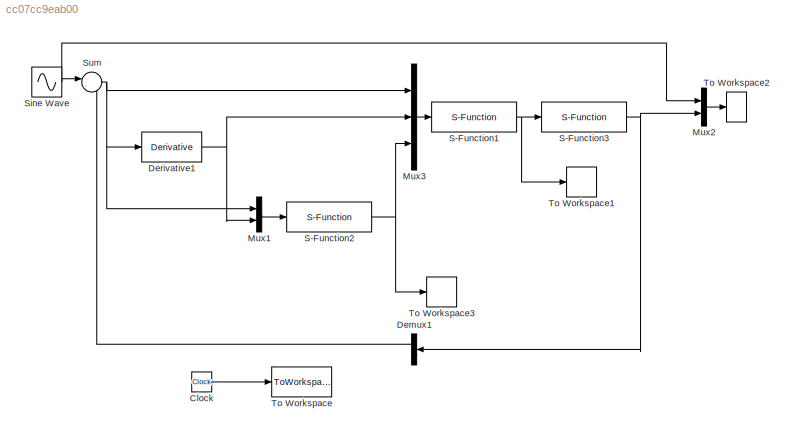
MODEL slx_cc07cc9eab00
KIND model
CONFIG AbsTol = auto
CONFIG FixedStep = 0.01
CONFIG MaxStep = auto
CONFIG MinStep = auto
CONFIG RelTol = 1e-3
CONFIG SampleTimeConstraint = Unconstrained
CONFIG Solver = ode45
CONFIG SolverMode = Auto
CONFIG SolverName = ode45
CONFIG StartTime = 0.0
CONFIG StopTime = 10
BLOCK [Clock] Clock
BLOCK [Demux] Demux1
  DisplayOption = bar
  Outputs = 2
  Ports = [1, 2]
BLOCK [Derivative] Derivative1
BLOCK [Mux] Mux1
  DisplayOption = bar
  Inputs = 2
  Ports = [2, 1]
BLOCK [Mux] Mux2
  DisplayOption = bar
  Inputs = 2
  Ports = [2, 1]
BLOCK [Mux] Mux3
  DisplayOption = bar
  Inputs = 3
  Ports = [3, 1]
BLOCK [S-Function] S-Function1
  FunctionName = chap6_1ctrl
  Ports = [1, 1]
  SFunctionModules = 'chap6_1ctrl'
BLOCK [S-Function] S-Function2
  FunctionName = chap6_1adapt
  Ports = [1, 1]
  SFunctionModules = 'chap6_1adapt'
BLOCK [S-Function] S-Function3
  FunctionName = chap6_1plant
  Ports = [1, 1]
  SFunctionModules = 'chap6_1plant'
BLOCK [Sin] Sine Wave
  Frequency = 0.3*pi
  Ports = [0, 1]
  SampleTime = 0
BLOCK [Sum] Sum
  IconShape = round
  InputSameDT = off
  Inputs = |-+
  OutDataTypeStr = Inherit: Inherit via internal rule
  Ports = [2, 1]
  SaturateOnIntegerOverflow = off
BLOCK [ToWorkspace] To Workspace
  FixptAsFi = on
  MaxDataPoints = inf
  Ports = [1]
  SampleTime = -1
  Save2DSignal = 3-D array (concatenate along third dimension)
  VariableName = t
BLOCK [ToWorkspace] To Workspace1
  FixptAsFi = on
  MaxDataPoints = inf
  Ports = [1]
  SampleTime = -1
  Save2DSignal = 3-D array (concatenate along third dimension)
  VariableName = ut
BLOCK [ToWorkspace] To Workspace2
  FixptAsFi = on
  MaxDataPoints = inf
  Ports = [1]
  SampleTime = -1
  Save2DSignal = 3-D array (concatenate along third dimension)
  VariableName = y
BLOCK [ToWorkspace] To Workspace3
  FixptAsFi = on
  MaxDataPoints = inf
  Ports = [1]
  SampleTime = -1
  Save2DSignal = 3-D array (concatenate along third dimension)
  VariableName = p
LINE Clock:1 -> To Workspace:1
LINE Demux1:1 -> Sum:2
NET Derivative1:1 -> Mux1:2, Mux3:2
LINE Mux1:1 -> S-Function2:1
LINE Mux2:1 -> To Workspace2:1
LINE Mux3:1 -> S-Function1:1
NET S-Function1:1 -> S-Function3:1, To Workspace1:1
NET S-Function2:1 -> Mux3:3, To Workspace3:1
NET S-Function3:1 -> Demux1:1, Mux2:2
NET Sine Wave:1 -> Mux2:1, Sum:1
NET Sum:1 -> Derivative1:1, Mux1:1, Mux3:1
note: NET lines group one-source signal fan-out (src -> all destinations, sorted); 1:1 wires keep LINE
